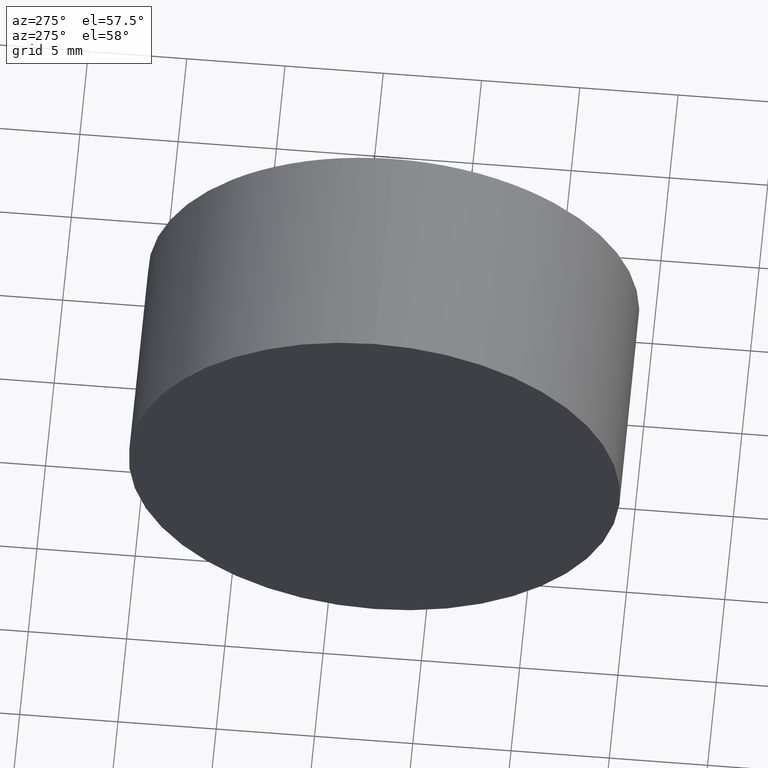
[diagram: clean part render]
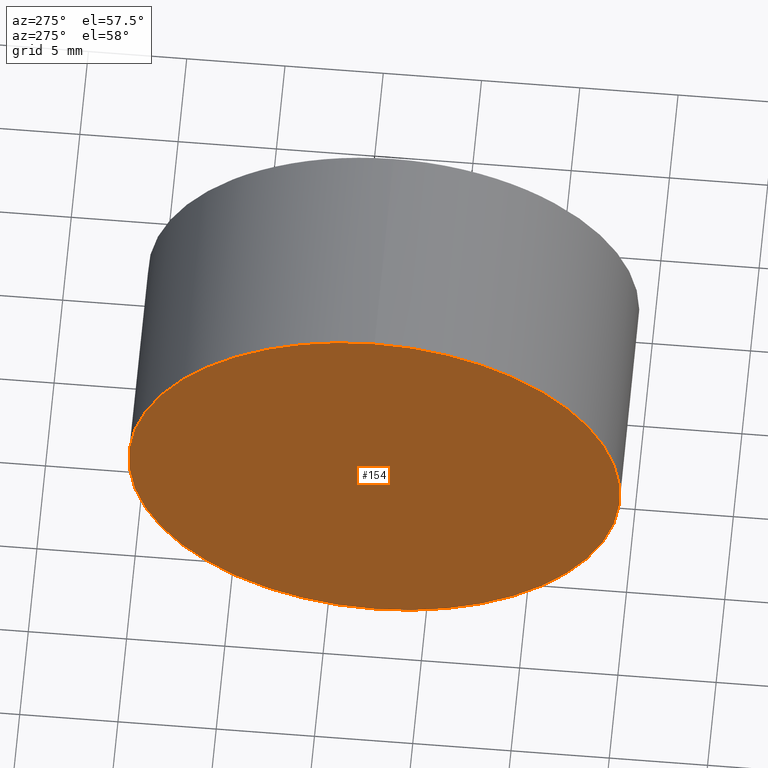
[diagram: same view with one face highlighted and labeled with its STEP entity id]
A machine part, auxiliary view. The second image highlights one B-rep face of the part: STEP entity #154.
In plain terms, the highlighted planar face has unit normal (1, 0, 0).
Its self-contained STEP definition (entity closure, byte-faithful):
#15 = DIRECTION ( 'NONE',  ( 0.0000000000000000000, 0.0000000000000000000, -1.000000000000000000 ) ) ;
#21 = ORIENTED_EDGE ( 'NONE', *, *, #46, .T. ) ;
#22 = FACE_OUTER_BOUND ( 'NONE', #170, .T. ) ;
#29 = CARTESIAN_POINT ( 'NONE',  ( 57.53233705252611700, 32.61076812922678400, 12.49999999999999600 ) ) ;
#46 = EDGE_CURVE ( 'NONE', #84, #52, #169, .T. ) ;
#52 = VERTEX_POINT ( 'NONE', #62 ) ;
#57 = ORIENTED_EDGE ( 'NONE', *, *, #60, .T. ) ;
#60 = EDGE_CURVE ( 'NONE', #52, #84, #92, .T. ) ;
#62 = CARTESIAN_POINT ( 'NONE',  ( 57.53233705252611700, 32.61076812922678400, -12.49999999999999600 ) ) ;
#69 = CARTESIAN_POINT ( 'NONE',  ( 57.53233705252611700, 32.61076812922678400, 0.0000000000000000000 ) ) ;
#75 = DIRECTION ( 'NONE',  ( 1.000000000000000000, 0.0000000000000000000, 0.0000000000000000000 ) ) ;
#76 = DIRECTION ( 'NONE',  ( -1.000000000000000000, -0.0000000000000000000, -0.0000000000000000000 ) ) ;
#84 = VERTEX_POINT ( 'NONE', #29 ) ;
#86 = DIRECTION ( 'NONE',  ( 0.0000000000000000000, 0.0000000000000000000, 1.000000000000000000 ) ) ;
#92 = CIRCLE ( 'NONE', #140, 12.49999999999999600 ) ;
#103 = DIRECTION ( 'NONE',  ( -1.000000000000000000, -0.0000000000000000000, -0.0000000000000000000 ) ) ;
#120 = CARTESIAN_POINT ( 'NONE',  ( 57.53233705252611700, 32.61076812922678400, 0.0000000000000000000 ) ) ;
#130 = AXIS2_PLACEMENT_3D ( 'NONE', #69, #103, #86 ) ;
#140 = AXIS2_PLACEMENT_3D ( 'NONE', #163, #76, #180 ) ;
#154 = ADVANCED_FACE ( 'NONE', ( #22 ), #176, .F. ) ;
#163 = CARTESIAN_POINT ( 'NONE',  ( 57.53233705252611700, 32.61076812922678400, 0.0000000000000000000 ) ) ;
#169 = CIRCLE ( 'NONE', #130, 12.49999999999999600 ) ;
#170 = EDGE_LOOP ( 'NONE', ( #21, #57 ) ) ;
#176 = PLANE ( 'NONE',  #177 ) ;
#177 = AXIS2_PLACEMENT_3D ( 'NONE', #120, #75, #15 ) ;
#180 = DIRECTION ( 'NONE',  ( 0.0000000000000000000, 0.0000000000000000000, 1.000000000000000000 ) ) ;